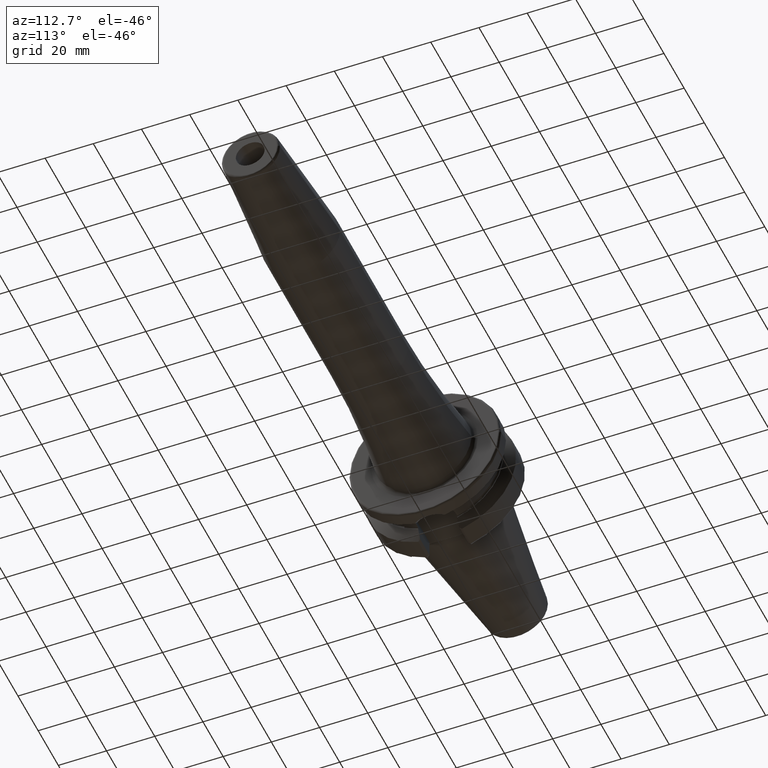
[diagram: clean part render]
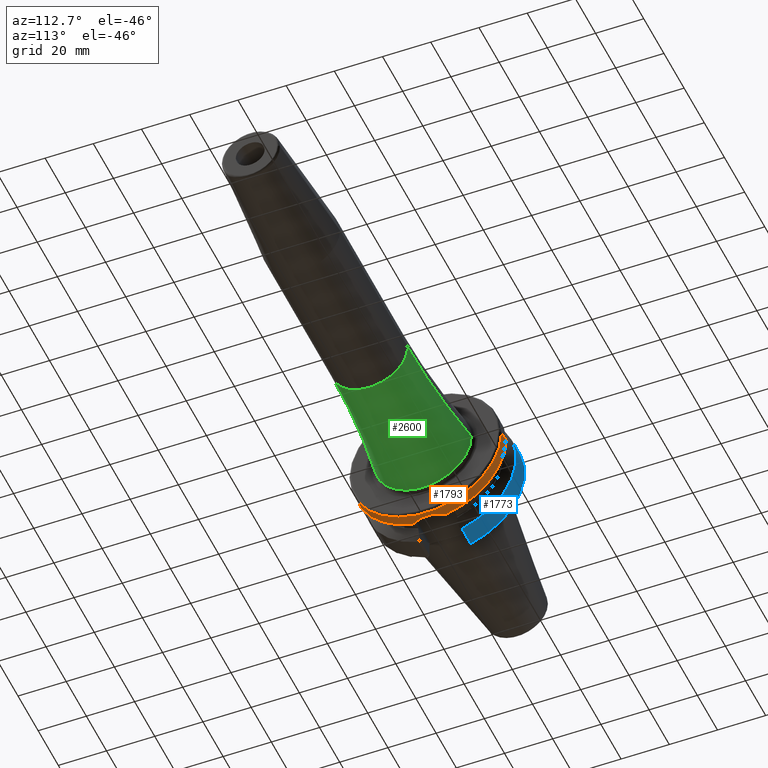
[diagram: same view with three faces highlighted in distinct colors, each labeled with its STEP entity id]
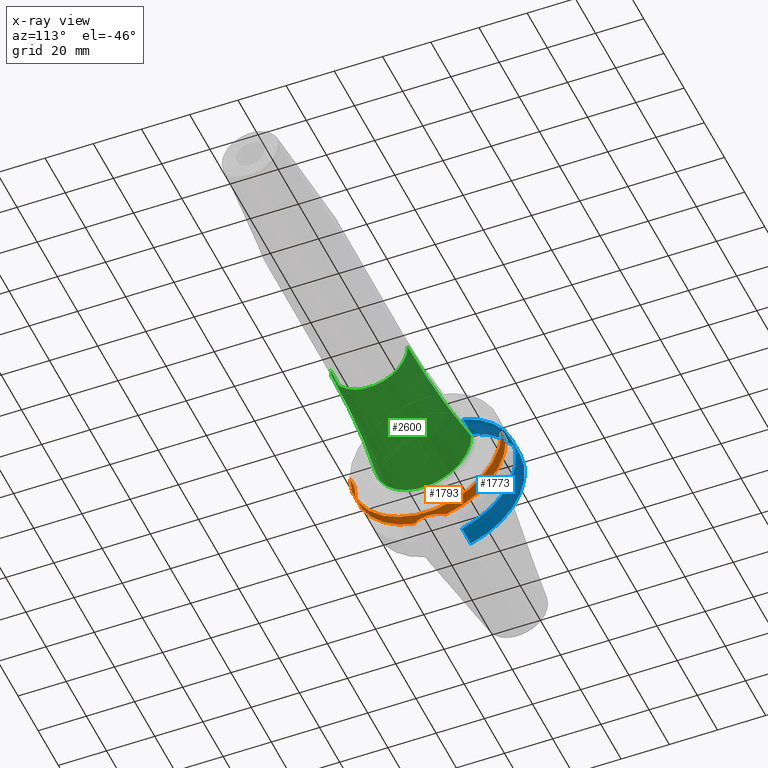
[diagram: x-ray of the same camera — body ghosted, the three highlighted faces saturated]
A machine part, auxiliary view with three faces highlighted in distinct colors.
The next image is the same camera in x-ray (body ghosted, the three faces saturated) — at least one of them is partly hidden behind the body in this view.
Their STEP definitions:

[orange] entity #1793 — the highlighted cylindrical surface (partial cylindrical patch) has radius 31.4875 mm, axis along (1, 0, 0).
#246=CARTESIAN_POINT('',(2.162727746897E1,0.E0,0.E0));
#247=DIRECTION('',(1.E0,0.E0,0.E0));
#248=DIRECTION('',(0.E0,-1.E0,0.E0));
#249=AXIS2_PLACEMENT_3D('',#246,#247,#248);
#251=DIRECTION('',(-1.E0,0.E0,0.E0));
#252=VECTOR('',#251,4.372722531031E0);
#253=CARTESIAN_POINT('',(2.6E1,-3.14875E1,0.E0));
#254=LINE('',#253,#252);
#255=CARTESIAN_POINT('',(2.6E1,0.E0,0.E0));
#256=DIRECTION('',(-1.E0,0.E0,0.E0));
#257=DIRECTION('',(0.E0,1.E0,0.E0));
#258=AXIS2_PLACEMENT_3D('',#255,#256,#257);
#260=DIRECTION('',(-1.E0,0.E0,0.E0));
#261=VECTOR('',#260,4.372722531031E0);
#262=CARTESIAN_POINT('',(2.6E1,3.14875E1,0.E0));
#263=LINE('',#262,#261);
#264=CARTESIAN_POINT('',(2.162727746897E1,0.E0,0.E0));
#265=DIRECTION('',(1.E0,0.E0,0.E0));
#266=DIRECTION('',(0.E0,2.025221356988E-1,-9.792776851088E-1));
#267=AXIS2_PLACEMENT_3D('',#264,#265,#266);
#269=CARTESIAN_POINT('',(2.162727746897E1,-6.376922817779E0,-3.083500464774E1));
#270=CARTESIAN_POINT('',(2.179639421098E1,-6.206831610819E0,-3.087018371088E1));
#271=CARTESIAN_POINT('',(2.232364867117E1,-5.632321227298E0,-3.098422972396E1));
#272=CARTESIAN_POINT('',(2.308132499159E1,-4.553413356838E0,-3.116719517710E1));
#273=CARTESIAN_POINT('',(2.375642364916E1,-3.096696697708E0,-3.134706212903E1));
#274=CARTESIAN_POINT('',(2.416388565718E1,-1.551520318298E0,-3.146240625515E1));
#275=CARTESIAN_POINT('',(2.429615986887E1,3.673173569156E-2,-3.150094402831E1));
#276=CARTESIAN_POINT('',(2.415103100304E1,1.624802494737E0,-3.145868929477E1));
#277=CARTESIAN_POINT('',(2.373074835246E1,3.167093598881E0,-3.133996423654E1));
#278=CARTESIAN_POINT('',(2.304347310477E1,4.618481554386E0,-3.115752883213E1));
#279=CARTESIAN_POINT('',(2.229119413287E1,5.670903386055E0,-3.097688944820E1));
#280=CARTESIAN_POINT('',(2.177863162319E1,6.224695230405E0,-3.086648974378E1));
#281=CARTESIAN_POINT('',(2.162727746897E1,6.376915747817E0,-3.083500610986E1));
#1246=CARTESIAN_POINT('',(2.162727746897E1,3.14875E1,0.E0));
#1248=VERTEX_POINT('',#1246);
#1250=CARTESIAN_POINT('',(2.162727746897E1,-3.14875E1,0.E0));
#1251=CARTESIAN_POINT('',(2.162727746897E1,-6.376922817779E0,
-3.083500464774E1));
#1252=VERTEX_POINT('',#1250);
#1253=VERTEX_POINT('',#1251);
#1254=CARTESIAN_POINT('',(2.6E1,3.14875E1,0.E0));
#1255=VERTEX_POINT('',#1254);
#1256=CARTESIAN_POINT('',(2.6E1,-3.14875E1,0.E0));
#1257=VERTEX_POINT('',#1256);
#1260=CARTESIAN_POINT('',(2.162727746897E1,6.376915747817E0,-3.083500610986E1));
#1261=VERTEX_POINT('',#1260);
#1774=CARTESIAN_POINT('',(-7.002E1,0.E0,0.E0));
#1775=DIRECTION('',(1.E0,0.E0,0.E0));
#1776=DIRECTION('',(0.E0,-1.E0,0.E0));
#1777=AXIS2_PLACEMENT_3D('',#1774,#1775,#1776);
#1778=CYLINDRICAL_SURFACE('',#1777,3.14875E1);
#1780=ORIENTED_EDGE('',*,*,#1779,.F.);
#1782=ORIENTED_EDGE('',*,*,#1781,.F.);
#1784=ORIENTED_EDGE('',*,*,#1783,.F.);
#1786=ORIENTED_EDGE('',*,*,#1785,.T.);
#1788=ORIENTED_EDGE('',*,*,#1787,.F.);
#1790=ORIENTED_EDGE('',*,*,#1789,.F.);
#1791=EDGE_LOOP('',(#1780,#1782,#1784,#1786,#1788,#1790));
#1792=FACE_OUTER_BOUND('',#1791,.F.);
#1793=ADVANCED_FACE('',(#1792),#1778,.T.);
#250=CIRCLE('',#249,3.14875E1);
#259=CIRCLE('',#258,3.14875E1);
#268=CIRCLE('',#267,3.14875E1);
#282=B_SPLINE_CURVE_WITH_KNOTS('',3,(#269,#270,#271,#272,#273,#274,#275,#276,
#277,#278,#279,#280,#281),.UNSPECIFIED.,.F.,.F.,(4,1,1,1,1,1,1,1,1,1,4),(0.E0,
5.022508536415E-2,1.633285299657E-1,2.764319745673E-1,3.895354191688E-1,
5.026388637704E-1,6.157423083720E-1,7.288457529735E-1,8.419491975751E-1,
9.550526421767E-1,1.E0),.UNSPECIFIED.);
#1779=EDGE_CURVE('',#1252,#1253,#250,.T.);
#1781=EDGE_CURVE('',#1257,#1252,#254,.T.);
#1783=EDGE_CURVE('',#1255,#1257,#259,.T.);
#1785=EDGE_CURVE('',#1255,#1248,#263,.T.);
#1787=EDGE_CURVE('',#1261,#1248,#268,.T.);
#1789=EDGE_CURVE('',#1253,#1261,#282,.T.);

[blue] entity #1773 — the highlighted cylindrical surface (partial cylindrical patch) has radius 31.4875 mm, axis along (1, 0, 0).
#228=CARTESIAN_POINT('',(3.E0,0.E0,0.E0));
#229=DIRECTION('',(-1.E0,0.E0,0.E0));
#230=DIRECTION('',(0.E0,2.983189831898E-1,9.544662300305E-1));
#231=AXIS2_PLACEMENT_3D('',#228,#229,#230);
#233=DIRECTION('',(-9.999999999998E-1,-3.572441515959E-7,-4.802508939409E-7));
#234=VECTOR('',#233,8.572722533299E0);
#235=CARTESIAN_POINT('',(1.157272253103E1,9.052779463114E0,-3.015808084481E1));
#236=LINE('',#235,#234);
#237=CARTESIAN_POINT('',(1.157272253103E1,0.E0,0.E0));
#238=DIRECTION('',(1.E0,0.E0,0.E0));
#239=DIRECTION('',(0.E0,2.875039130802E-1,-9.577794631143E-1));
#240=AXIS2_PLACEMENT_3D('',#237,#238,#239);
#242=DIRECTION('',(9.999999999911E-1,2.496639373931E-6,-3.395432034657E-6));
#243=VECTOR('',#242,8.572722551500E0);
#244=CARTESIAN_POINT('',(2.999999979607E0,9.393297580193E0,3.005378452618E1));
#245=LINE('',#244,#243);
#576=CARTESIAN_POINT('',(2.999999997734E0,9.052776400559E0,-3.015808496187E1));
#1364=CARTESIAN_POINT('',(1.157272253103E1,9.052779463114E0,-3.015808084481E1));
#1365=CARTESIAN_POINT('',(1.157272253103E1,9.393318983190E0,3.005375541808E1));
#1366=VERTEX_POINT('',#1364);
#1367=VERTEX_POINT('',#1365);
#1379=CARTESIAN_POINT('',(3.E0,9.393347656107E0,3.005374645633E1));
#1381=VERTEX_POINT('',#1379);
#1396=VERTEX_POINT('',#576);
#1759=CARTESIAN_POINT('',(-7.002E1,0.E0,0.E0));
#1760=DIRECTION('',(1.E0,0.E0,0.E0));
#1761=DIRECTION('',(0.E0,-1.E0,0.E0));
#1762=AXIS2_PLACEMENT_3D('',#1759,#1760,#1761);
#1763=CYLINDRICAL_SURFACE('',#1762,3.14875E1);
#1765=ORIENTED_EDGE('',*,*,#1764,.T.);
#1767=ORIENTED_EDGE('',*,*,#1766,.F.);
#1768=ORIENTED_EDGE('',*,*,#1712,.T.);
#1770=ORIENTED_EDGE('',*,*,#1769,.F.);
#1771=EDGE_LOOP('',(#1765,#1767,#1768,#1770));
#1772=FACE_OUTER_BOUND('',#1771,.F.);
#1773=ADVANCED_FACE('',(#1772),#1763,.T.);
#232=CIRCLE('',#231,3.14875E1);
#241=CIRCLE('',#240,3.14875E1);
#1712=EDGE_CURVE('',#1366,#1367,#241,.T.);
#1764=EDGE_CURVE('',#1381,#1396,#232,.T.);
#1766=EDGE_CURVE('',#1366,#1396,#236,.T.);
#1769=EDGE_CURVE('',#1381,#1367,#245,.T.);

[green] entity #2600 — the highlighted toroidal blend (fillet) surface has major radius 366 mm and minor (blend) radius 350 mm.
#861=CARTESIAN_POINT('',(2.869540229885E1,0.E0,0.E0));
#862=DIRECTION('',(1.E0,0.E0,0.E0));
#863=DIRECTION('',(0.E0,-1.E0,0.E0));
#864=AXIS2_PLACEMENT_3D('',#861,#862,#863);
#866=CARTESIAN_POINT('',(8.2E1,-3.66E2,-8.964414569759E-14));
#867=DIRECTION('',(0.E0,0.E0,1.E0));
#868=DIRECTION('',(0.E0,1.E0,0.E0));
#869=AXIS2_PLACEMENT_3D('',#866,#867,#868);
#871=CARTESIAN_POINT('',(8.2E1,3.66E2,4.482207284879E-14));
#872=DIRECTION('',(0.E0,0.E0,-1.E0));
#873=DIRECTION('',(0.E0,-1.E0,0.E0));
#874=AXIS2_PLACEMENT_3D('',#871,#872,#873);
#876=CARTESIAN_POINT('',(8.2E1,0.E0,0.E0));
#877=DIRECTION('',(1.E0,0.E0,0.E0));
#878=DIRECTION('',(0.E0,-1.E0,0.E0));
#879=AXIS2_PLACEMENT_3D('',#876,#877,#878);
#1433=CARTESIAN_POINT('',(8.2E1,1.6E1,0.E0));
#1434=CARTESIAN_POINT('',(8.2E1,-1.6E1,0.E0));
#1435=VERTEX_POINT('',#1433);
#1436=VERTEX_POINT('',#1434);
#1441=CARTESIAN_POINT('',(2.869540229885E1,-2.008292921002E1,0.E0));
#1442=CARTESIAN_POINT('',(2.869540229885E1,2.008292921002E1,0.E0));
#1443=VERTEX_POINT('',#1441);
#1444=VERTEX_POINT('',#1442);
#2588=CARTESIAN_POINT('',(8.2E1,0.E0,0.E0));
#2589=DIRECTION('',(1.E0,0.E0,0.E0));
#2590=DIRECTION('',(0.E0,-1.E0,0.E0));
#2591=AXIS2_PLACEMENT_3D('',#2588,#2589,#2590);
#2592=TOROIDAL_SURFACE('',#2591,3.66E2,3.5E2);
#2593=ORIENTED_EDGE('',*,*,#2553,.F.);
#2594=ORIENTED_EDGE('',*,*,#2583,.F.);
#2596=ORIENTED_EDGE('',*,*,#2595,.T.);
#2597=ORIENTED_EDGE('',*,*,#2579,.T.);
#2598=EDGE_LOOP('',(#2593,#2594,#2596,#2597));
#2599=FACE_OUTER_BOUND('',#2598,.F.);
#2600=ADVANCED_FACE('',(#2599),#2592,.F.);
#865=CIRCLE('',#864,2.008292921002E1);
#870=CIRCLE('',#869,3.5E2);
#875=CIRCLE('',#874,3.5E2);
#880=CIRCLE('',#879,1.6E1);
#2553=EDGE_CURVE('',#1443,#1444,#865,.T.);
#2579=EDGE_CURVE('',#1435,#1444,#875,.T.);
#2583=EDGE_CURVE('',#1436,#1443,#870,.T.);
#2595=EDGE_CURVE('',#1436,#1435,#880,.T.);